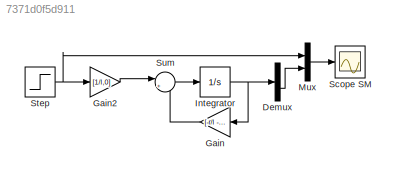
MODEL slx_7371d0f5d911
KIND model
CONFIG AbsTol = auto
CONFIG EnableMultiTasking = off
CONFIG FixedStep = auto
CONFIG MaxStep = auto
CONFIG MinStep = auto
CONFIG RelTol = 1e-3
CONFIG SampleTimeConstraint = Unconstrained
CONFIG SolverName = ode23
CONFIG StartTime = 0.0
CONFIG StopTime = 0.0005
BLOCK [Demux] Demux
  Outputs = 2
BLOCK [Gain] Gain
  Gain = [-r/l -1/l ; 1/c 0]
  Multiplication = Matrix(K*u)
  NameLocation = top
BLOCK [Gain] Gain2
  Gain = [1/l,0]
BLOCK [Integrator] Integrator
BLOCK [Mux] Mux
  DisplayOption = bar
  Inputs = 2
BLOCK [Scope] Scope SM
  Floating = off
  NumInputPorts = 1
  ScopeSpecificationString = Simulink.scopes.TimeScopeBlockCfg('CurrentConfiguration', extmgr.ConfigurationSet(extmgr.Configuration('Core','General UI',true),extmgr.Configuration('Core','Source UI',true),extmgr.Configuration('Sources','WiredSimulink',true),extmgr.Configuration('Visuals','Time Domain',true,'SerializedDisplays',{struct('MinYLimReal','-2.16478','MaxYLimReal','19.48301','YLabelReal','','MinYLimMag','0.00000','Max...<+1393ch>
BLOCK [Step] Step
  After = 12
  SampleTime = 0
  Time = 0
BLOCK [Sum] Sum
  Inputs = |++
LINE Demux:2 -> Mux:2
LINE Gain2:1 -> Sum:1
LINE Gain:1 -> Sum:2
NET Integrator:1 -> Demux:1, Gain:1
LINE Mux:1 -> Scope SM:1
NET Step:1 -> Gain2:1, Mux:1
LINE Sum:1 -> Integrator:1
note: NET lines group one-source signal fan-out (src -> all destinations, sorted); 1:1 wires keep LINE
